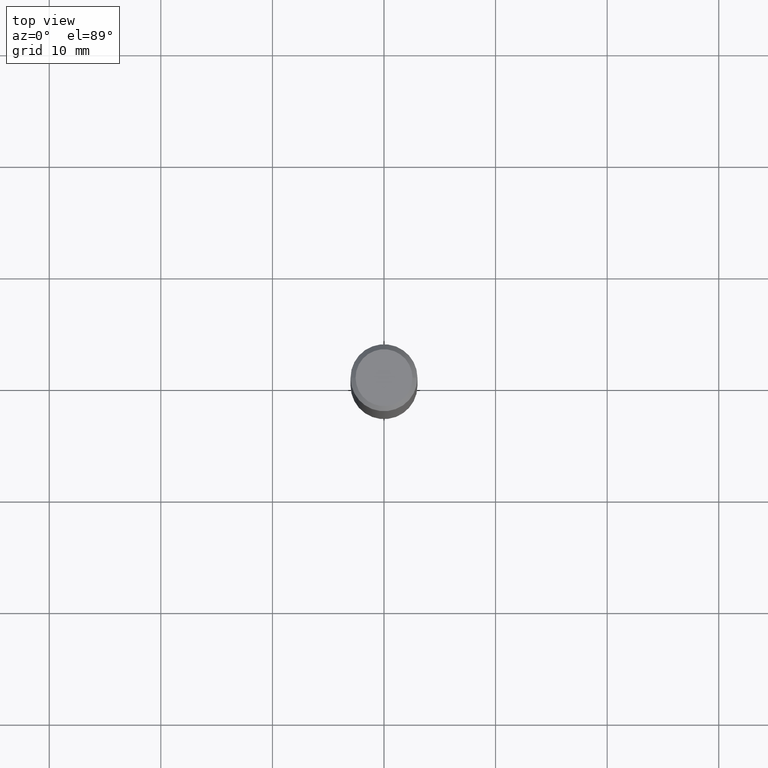
[diagram: clean part render]
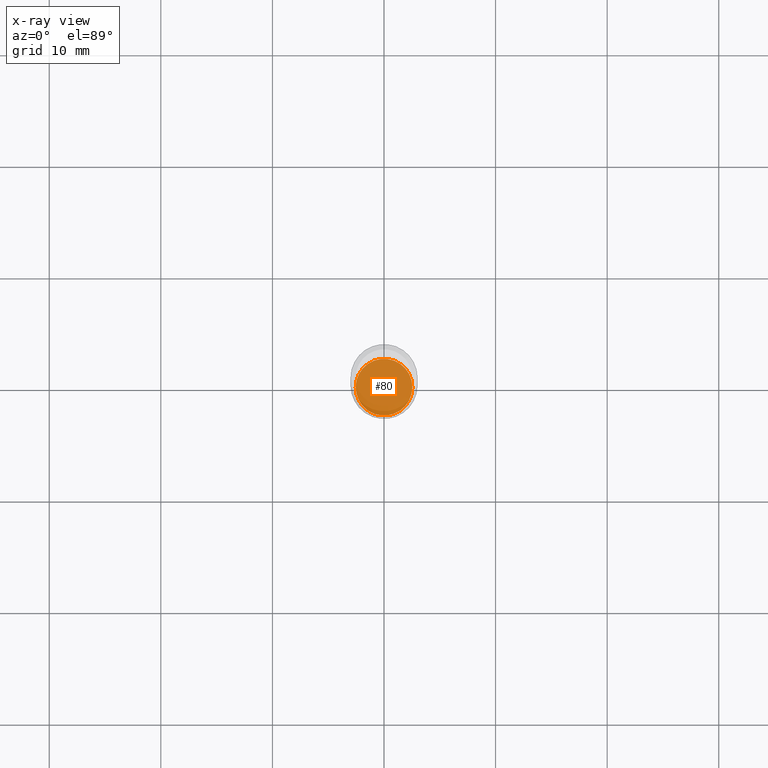
[diagram: x-ray — body ghosted, one internal face saturated and labeled with its STEP entity id]
A machine part, top view, then the same camera in x-ray: the body is ghosted and one INTERNAL B-rep face — a face not visible from any outside direction — is saturated and labeled: STEP entity #80.
In plain terms, the highlighted planar face has unit normal (-0, 0, 1).
Its self-contained STEP definition (entity closure, byte-faithful):
#36 = CARTESIAN_POINT ( 'NONE',  ( 4.746899499685969430E-29, -6.777314426828430156E-15, -1.941100000000000270 ) ) ;
#71 = CARTESIAN_POINT ( 'NONE',  ( 0.1000000000000000056, -7.475610694597056827E-15, -1.941100000000000270 ) ) ;
#74 = CARTESIAN_POINT ( 'NONE',  ( 4.746899499685969430E-29, -6.777314426828430156E-15, -1.941100000000000270 ) ) ;
#80 = ADVANCED_FACE ( 'NONE', ( #151 ), #113, .F. ) ;
#81 = ORIENTED_EDGE ( 'NONE', *, *, #220, .F. ) ;
#106 = DIRECTION ( 'NONE',  ( -2.445468806185136597E-29, 3.491481338843145583E-15, 1.000000000000000000 ) ) ;
#109 = CARTESIAN_POINT ( 'NONE',  ( 4.746899499685969430E-29, -6.777314426828430156E-15, -1.941100000000000270 ) ) ;
#113 = PLANE ( 'NONE',  #332 ) ;
#118 = EDGE_LOOP ( 'NONE', ( #81, #135 ) ) ;
#124 = AXIS2_PLACEMENT_3D ( 'NONE', #36, #203, #242 ) ;
#135 = ORIENTED_EDGE ( 'NONE', *, *, #294, .F. ) ;
#151 = FACE_OUTER_BOUND ( 'NONE', #118, .T. ) ;
#184 = DIRECTION ( 'NONE',  ( -2.438088387897960049E-29, 3.491481338843145188E-15, 1.000000000000000000 ) ) ;
#186 = CIRCLE ( 'NONE', #445, 0.1000000000000000056 ) ;
#203 = DIRECTION ( 'NONE',  ( -2.445468806185136597E-29, 3.491481338843145583E-15, 1.000000000000000000 ) ) ;
#216 = CARTESIAN_POINT ( 'NONE',  ( -0.1000000000000000056, -6.064122463894218927E-15, -1.941100000000000270 ) ) ;
#220 = EDGE_CURVE ( 'NONE', #305, #400, #369, .T. ) ;
#224 = DIRECTION ( 'NONE',  ( 1.000000000000000000, -6.982962677686265922E-15, 4.876176775795935793E-29 ) ) ;
#242 = DIRECTION ( 'NONE',  ( 1.000000000000000000, -6.982962677686264344E-15, 0.000000000000000000 ) ) ;
#257 = DIRECTION ( 'NONE',  ( 1.000000000000000000, -6.982962677686264344E-15, 0.000000000000000000 ) ) ;
#294 = EDGE_CURVE ( 'NONE', #400, #305, #186, .T. ) ;
#305 = VERTEX_POINT ( 'NONE', #71 ) ;
#332 = AXIS2_PLACEMENT_3D ( 'NONE', #74, #184, #224 ) ;
#369 = CIRCLE ( 'NONE', #124, 0.1000000000000000056 ) ;
#400 = VERTEX_POINT ( 'NONE', #216 ) ;
#445 = AXIS2_PLACEMENT_3D ( 'NONE', #109, #106, #257 ) ;